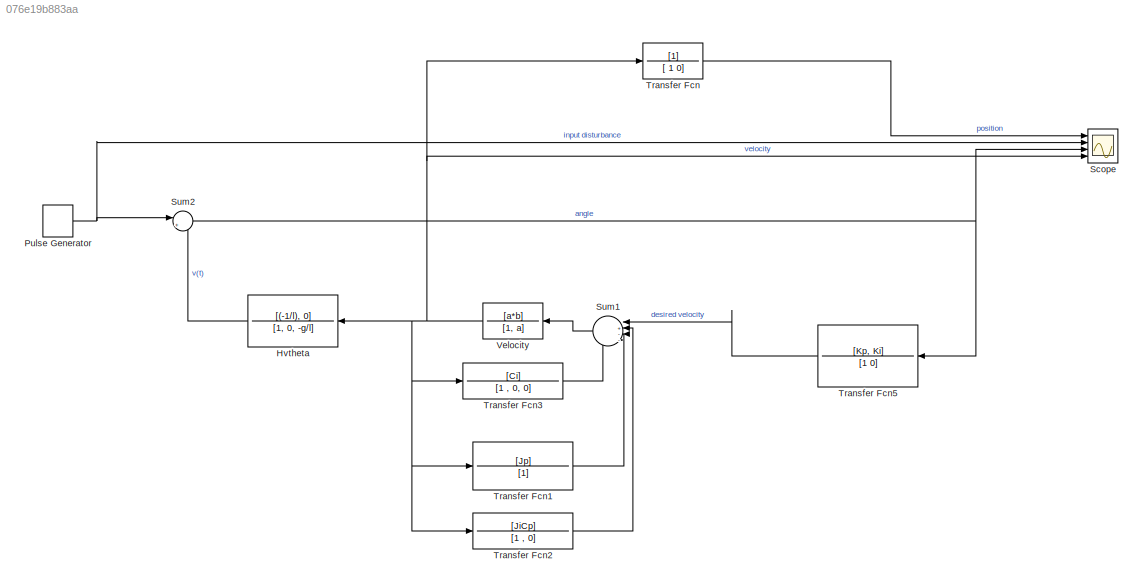
MODEL slx_076e19b883aa
KIND model
CONFIG AbsTol = auto
CONFIG EnableMultiTasking = off
CONFIG FixedStep = auto
CONFIG MaxStep = auto
CONFIG MinStep = auto
CONFIG RelTol = 1e-3
CONFIG SampleTimeConstraint = Unconstrained
CONFIG SolverName = VariableStepAuto
CONFIG StartTime = 0.0
CONFIG StopTime = 5
BLOCK [TransferFcn] Hvtheta
  Denominator = [1, 0, -g/l]
  Numerator = [(-1/l), 0]
BLOCK [DiscretePulseGenerator] Pulse Generator
  Period = 10
  Ports = [0, 1]
  PulseType = Time based
  PulseWidth = 5
BLOCK [Scope] Scope
  Floating = off
  NumInputPorts = 4
  Ports = [4]
  ScopeSpecificationString = Simulink.scopes.TimeScopeBlockCfg('CurrentConfiguration', extmgr.ConfigurationSet(extmgr.Configuration('Core','General UI',true),extmgr.Configuration('Core','Source UI',true),extmgr.Configuration('Sources','WiredSimulink',true),extmgr.Configuration('Visuals','Time Domain',true,'SerializedDisplays',{struct('MinYLimReal','-18.22533','MaxYLimReal','10.73343','YLabelReal','','MinYLimMag','0.00000','Ma...<+1491ch>
BLOCK [Sum] Sum1
  Inputs = |+---
  Ports = [4, 1]
BLOCK [Sum] Sum2
  Inputs = |++
  Ports = [2, 1]
BLOCK [TransferFcn] Transfer Fcn
  Denominator = [ 1 0]
BLOCK [TransferFcn] Transfer Fcn1
  Denominator = [1]
  Numerator = [Jp]
BLOCK [TransferFcn] Transfer Fcn2
  Denominator = [1 , 0]
  Numerator = [JiCp]
BLOCK [TransferFcn] Transfer Fcn3
  Denominator = [1 , 0, 0]
  Numerator = [Ci]
BLOCK [TransferFcn] Transfer Fcn5
  Denominator = [1 0]
  Numerator = [Kp, Ki]
BLOCK [TransferFcn] Velocity
  Denominator = [1, a]
  Numerator = [a*b]
LINE Hvtheta:1 -> Sum2:2
NET Pulse Generator:1 -> Scope:2, Sum2:1
LINE Sum1:1 -> Velocity:1
NET Sum2:1 -> Scope:3, Transfer Fcn5:1
LINE Transfer Fcn1:1 -> Sum1:3
LINE Transfer Fcn2:1 -> Sum1:2
LINE Transfer Fcn3:1 -> Sum1:4
LINE Transfer Fcn5:1 -> Sum1:1
LINE Transfer Fcn:1 -> Scope:1
NET Velocity:1 -> Hvtheta:1, Scope:4, Transfer Fcn1:1, Transfer Fcn2:1, Transfer Fcn3:1, Transfer Fcn:1
note: NET lines group one-source signal fan-out (src -> all destinations, sorted); 1:1 wires keep LINE
